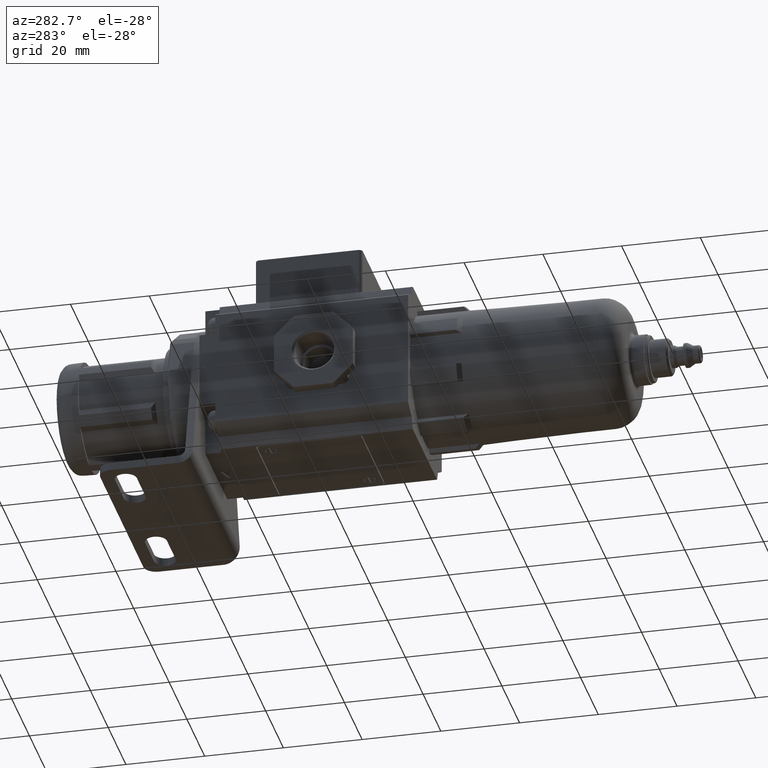
[diagram: clean part render]
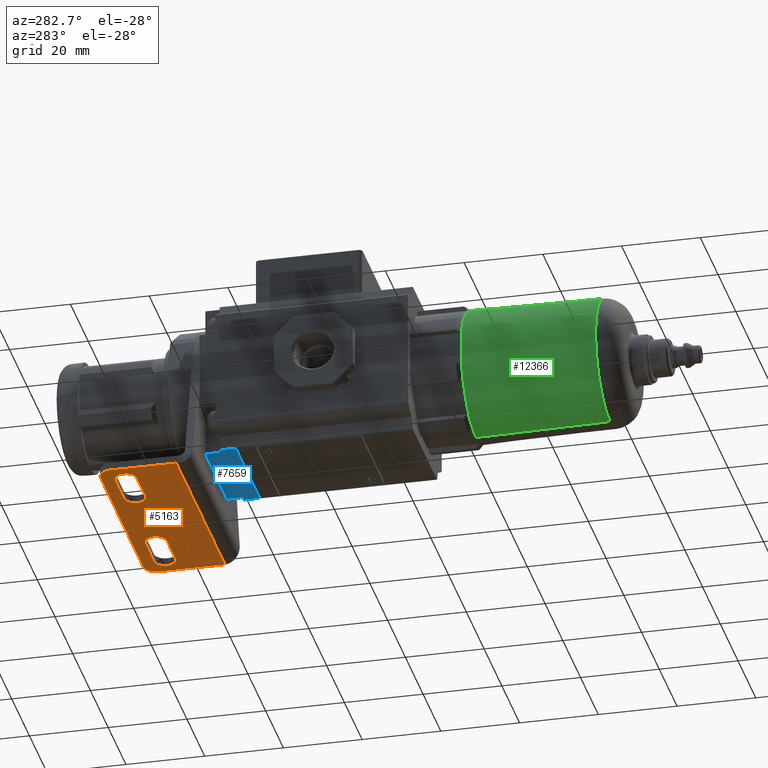
[diagram: same view with three faces highlighted in distinct colors, each labeled with its STEP entity id]
A machine part, auxiliary view with three faces highlighted in distinct colors.
Their STEP definitions:

[orange] entity #5163 — the highlighted planar face has unit normal (-0, 0, 1).
#433 = PLANE ( 'NONE',  #15992 ) ;
#452 = DIRECTION ( 'NONE',  ( 0.0000000000000000000, 0.0000000000000000000, 1.000000000000000000 ) ) ;
#574 = CARTESIAN_POINT ( 'NONE',  ( 11.99999999999998400, 45.24999999999998600, -30.00000000000007500 ) ) ;
#706 = EDGE_LOOP ( 'NONE', ( #9247, #10060, #3531, #8549, #8129 ) ) ;
#721 = VECTOR ( 'NONE', #5186, 1000.000000000000000 ) ;
#970 = CIRCLE ( 'NONE', #16263, 2.750000000000002700 ) ;
#1797 = VECTOR ( 'NONE', #5035, 1000.000000000000000 ) ;
#1857 = ORIENTED_EDGE ( 'NONE', *, *, #3655, .T. ) ;
#1897 = CIRCLE ( 'NONE', #6630, 2.750000000000009300 ) ;
#2145 = ORIENTED_EDGE ( 'NONE', *, *, #10357, .F. ) ;
#2213 = ORIENTED_EDGE ( 'NONE', *, *, #3425, .F. ) ;
#2283 = VECTOR ( 'NONE', #13334, 1000.000000000000000 ) ;
#2406 = CARTESIAN_POINT ( 'NONE',  ( 21.99999999999998600, 47.99999999999999300, -30.00000000000007500 ) ) ;
#2509 = ORIENTED_EDGE ( 'NONE', *, *, #11639, .T. ) ;
#2647 = CARTESIAN_POINT ( 'NONE',  ( 21.99999999999998600, 50.75000000000000000, -30.00000000000007500 ) ) ;
#2779 = CARTESIAN_POINT ( 'NONE',  ( -27.50000000000001800, 50.74999999999998600, -30.00000000000006400 ) ) ;
#2796 = VERTEX_POINT ( 'NONE', #2779 ) ;
#2924 = DIRECTION ( 'NONE',  ( -0.0000000000000000000, -0.0000000000000000000, -1.000000000000000000 ) ) ;
#2934 = VERTEX_POINT ( 'NONE', #14890 ) ;
#2977 = VERTEX_POINT ( 'NONE', #14947 ) ;
#3032 = ORIENTED_EDGE ( 'NONE', *, *, #14137, .F. ) ;
#3101 = DIRECTION ( 'NONE',  ( 0.0000000000000000000, -1.000000000000000000, 3.469446951953613400E-015 ) ) ;
#3201 = CARTESIAN_POINT ( 'NONE',  ( -2.725092878625384400E-014, 54.00000000000000000, -30.00000000000007500 ) ) ;
#3265 = EDGE_CURVE ( 'NONE', #7888, #11857, #13362, .T. ) ;
#3425 = EDGE_CURVE ( 'NONE', #2934, #13763, #13945, .T. ) ;
#3529 = CARTESIAN_POINT ( 'NONE',  ( -21.99999999999998600, 50.75000000000000000, -30.00000000000007500 ) ) ;
#3531 = ORIENTED_EDGE ( 'NONE', *, *, #3265, .T. ) ;
#3559 = CARTESIAN_POINT ( 'NONE',  ( 21.99999999999998600, 50.75000000000000000, -30.00000000000007500 ) ) ;
#3650 = AXIS2_PLACEMENT_3D ( 'NONE', #5551, #14429, #4478 ) ;
#3655 = EDGE_CURVE ( 'NONE', #2934, #2796, #10753, .T. ) ;
#3681 = DIRECTION ( 'NONE',  ( 1.000000000000000000, 0.0000000000000000000, 0.0000000000000000000 ) ) ;
#3716 = CARTESIAN_POINT ( 'NONE',  ( 24.24999999999998200, 50.75000000000000700, -30.00000000000006400 ) ) ;
#3753 = CARTESIAN_POINT ( 'NONE',  ( 24.24999999999998200, 54.00000000000001400, -30.00000000000007500 ) ) ;
#3954 = ORIENTED_EDGE ( 'NONE', *, *, #13638, .T. ) ;
#4089 = EDGE_CURVE ( 'NONE', #16099, #6679, #11134, .T. ) ;
#4195 = CARTESIAN_POINT ( 'NONE',  ( -21.99999999999998600, 45.24999999999999300, -30.00000000000007500 ) ) ;
#4330 = VECTOR ( 'NONE', #13099, 1000.000000000000000 ) ;
#4478 = DIRECTION ( 'NONE',  ( 1.000000000000000000, 0.0000000000000000000, 0.0000000000000000000 ) ) ;
#4546 = LINE ( 'NONE', #3201, #7532 ) ;
#4576 = DIRECTION ( 'NONE',  ( -0.0000000000000000000, -0.0000000000000000000, -1.000000000000000000 ) ) ;
#4974 = DIRECTION ( 'NONE',  ( 0.0000000000000000000, -1.000000000000000000, 3.202566417187948900E-015 ) ) ;
#5035 = DIRECTION ( 'NONE',  ( 1.000000000000000000, 6.938893903907228400E-016, -0.0000000000000000000 ) ) ;
#5163 = ADVANCED_FACE ( 'NONE', ( #12509, #5725, #12096 ), #433, .F. ) ;
#5186 = DIRECTION ( 'NONE',  ( -1.000000000000000000, 6.938893903907228400E-016, 0.0000000000000000000 ) ) ;
#5368 = CARTESIAN_POINT ( 'NONE',  ( -9.249999999999975100, 47.99999999999998600, -30.00000000000007500 ) ) ;
#5551 = CARTESIAN_POINT ( 'NONE',  ( 11.99999999999998400, 47.99999999999998600, -30.00000000000007500 ) ) ;
#5662 = DIRECTION ( 'NONE',  ( 1.750845403988396100E-030, -3.469446951953613400E-015, -1.000000000000000000 ) ) ;
#5725 = FACE_BOUND ( 'NONE', #706, .T. ) ;
#5888 = CARTESIAN_POINT ( 'NONE',  ( -27.50000000000000000, -1.197399886161783200E-013, -29.99999999999988600 ) ) ;
#6031 = CARTESIAN_POINT ( 'NONE',  ( 21.99999999999998600, 45.24999999999999300, -30.00000000000007500 ) ) ;
#6119 = VECTOR ( 'NONE', #7351, 1000.000000000000000 ) ;
#6292 = ORIENTED_EDGE ( 'NONE', *, *, #8302, .F. ) ;
#6613 = VERTEX_POINT ( 'NONE', #9314 ) ;
#6630 = AXIS2_PLACEMENT_3D ( 'NONE', #14939, #7317, #16226 ) ;
#6679 = VERTEX_POINT ( 'NONE', #574 ) ;
#6909 = CARTESIAN_POINT ( 'NONE',  ( 11.99999999999998400, 50.75000000000000000, -30.00000000000006400 ) ) ;
#7164 = VECTOR ( 'NONE', #14345, 1000.000000000000000 ) ;
#7253 = CIRCLE ( 'NONE', #7792, 3.250000000000002700 ) ;
#7293 = CARTESIAN_POINT ( 'NONE',  ( -24.25000000000002100, 53.99999999999998600, -30.00000000000007500 ) ) ;
#7317 = DIRECTION ( 'NONE',  ( -0.0000000000000000000, -0.0000000000000000000, -1.000000000000000000 ) ) ;
#7323 = EDGE_CURVE ( 'NONE', #6679, #10328, #11539, .T. ) ;
#7351 = DIRECTION ( 'NONE',  ( 1.000000000000000000, 6.938893903907228400E-016, 0.0000000000000000000 ) ) ;
#7457 = VERTEX_POINT ( 'NONE', #5368 ) ;
#7532 = VECTOR ( 'NONE', #9530, 1000.000000000000000 ) ;
#7619 = EDGE_CURVE ( 'NONE', #13187, #12094, #4546, .T. ) ;
#7662 = VERTEX_POINT ( 'NONE', #13422 ) ;
#7792 = AXIS2_PLACEMENT_3D ( 'NONE', #13294, #5662, #14558 ) ;
#7885 = AXIS2_PLACEMENT_3D ( 'NONE', #3716, #12612, #4974 ) ;
#7888 = VERTEX_POINT ( 'NONE', #11307 ) ;
#7986 = ORIENTED_EDGE ( 'NONE', *, *, #10847, .T. ) ;
#8054 = CARTESIAN_POINT ( 'NONE',  ( 21.99999999999998600, 47.99999999999999300, -30.00000000000007500 ) ) ;
#8108 = LINE ( 'NONE', #4195, #4330 ) ;
#8129 = ORIENTED_EDGE ( 'NONE', *, *, #4089, .T. ) ;
#8302 = EDGE_CURVE ( 'NONE', #2977, #8469, #8108, .T. ) ;
#8459 = ORIENTED_EDGE ( 'NONE', *, *, #15518, .F. ) ;
#8469 = VERTEX_POINT ( 'NONE', #14669 ) ;
#8503 = ORIENTED_EDGE ( 'NONE', *, *, #7619, .T. ) ;
#8541 = CARTESIAN_POINT ( 'NONE',  ( 27.49999999999998900, 33.99999999999995700, -30.00000000000000700 ) ) ;
#8549 = ORIENTED_EDGE ( 'NONE', *, *, #11393, .T. ) ;
#8618 = EDGE_LOOP ( 'NONE', ( #8503, #7986, #3954, #2213, #1857, #2509 ) ) ;
#8824 = CARTESIAN_POINT ( 'NONE',  ( 21.99999999999998600, 45.24999999999999300, -30.00000000000007500 ) ) ;
#9114 = LINE ( 'NONE', #3529, #6119 ) ;
#9247 = ORIENTED_EDGE ( 'NONE', *, *, #7323, .T. ) ;
#9314 = CARTESIAN_POINT ( 'NONE',  ( 27.49999999999998200, 50.75000000000000700, -30.00000000000006400 ) ) ;
#9328 = CARTESIAN_POINT ( 'NONE',  ( 5.516830960085580600E-029, -1.110663712362942900E-013, -29.99999999999988600 ) ) ;
#9345 = DIRECTION ( 'NONE',  ( 1.000000000000000000, 0.0000000000000000000, 0.0000000000000000000 ) ) ;
#9530 = DIRECTION ( 'NONE',  ( 1.000000000000000000, 5.046468293750712000E-016, 0.0000000000000000000 ) ) ;
#9545 = AXIS2_PLACEMENT_3D ( 'NONE', #10545, #2924, #11815 ) ;
#9748 = EDGE_LOOP ( 'NONE', ( #3032, #6292, #8459, #9783, #2145 ) ) ;
#9783 = ORIENTED_EDGE ( 'NONE', *, *, #11830, .F. ) ;
#9810 = EDGE_CURVE ( 'NONE', #10328, #7888, #970, .T. ) ;
#10060 = ORIENTED_EDGE ( 'NONE', *, *, #9810, .T. ) ;
#10328 = VERTEX_POINT ( 'NONE', #6031 ) ;
#10357 = EDGE_CURVE ( 'NONE', #15671, #7662, #9114, .T. ) ;
#10376 = VECTOR ( 'NONE', #14768, 1000.000000000000000 ) ;
#10545 = CARTESIAN_POINT ( 'NONE',  ( -11.99999999999998400, 47.99999999999998600, -30.00000000000007500 ) ) ;
#10707 = DIRECTION ( 'NONE',  ( -1.750845403988396100E-030, 3.469446951953613400E-015, 1.000000000000000000 ) ) ;
#10753 = LINE ( 'NONE', #5888, #10376 ) ;
#10798 = CARTESIAN_POINT ( 'NONE',  ( -21.99999999999998600, 50.75000000000000000, -30.00000000000007500 ) ) ;
#10847 = EDGE_CURVE ( 'NONE', #12094, #6613, #15450, .T. ) ;
#11134 = CIRCLE ( 'NONE', #3650, 2.750000000000009300 ) ;
#11282 = DIRECTION ( 'NONE',  ( 0.0000000000000000000, 0.0000000000000000000, 1.000000000000000000 ) ) ;
#11307 = CARTESIAN_POINT ( 'NONE',  ( 24.74999999999998600, 47.99999999999999300, -30.00000000000007500 ) ) ;
#11393 = EDGE_CURVE ( 'NONE', #11857, #16099, #14234, .T. ) ;
#11539 = LINE ( 'NONE', #8824, #1797 ) ;
#11568 = CIRCLE ( 'NONE', #9545, 2.750000000000009300 ) ;
#11634 = LINE ( 'NONE', #15874, #2283 ) ;
#11639 = EDGE_CURVE ( 'NONE', #2796, #13187, #7253, .T. ) ;
#11815 = DIRECTION ( 'NONE',  ( -1.000000000000000000, 0.0000000000000000000, 0.0000000000000000000 ) ) ;
#11830 = EDGE_CURVE ( 'NONE', #7662, #7457, #1897, .T. ) ;
#11857 = VERTEX_POINT ( 'NONE', #3559 ) ;
#12094 = VERTEX_POINT ( 'NONE', #3753 ) ;
#12096 = FACE_BOUND ( 'NONE', #9748, .T. ) ;
#12213 = CARTESIAN_POINT ( 'NONE',  ( -21.99999999999998600, 47.99999999999999300, -30.00000000000007500 ) ) ;
#12509 = FACE_OUTER_BOUND ( 'NONE', #8618, .T. ) ;
#12612 = DIRECTION ( 'NONE',  ( 1.750845403988396100E-030, -3.469446951953613400E-015, -1.000000000000000000 ) ) ;
#13099 = DIRECTION ( 'NONE',  ( -1.000000000000000000, 6.938893903907228400E-016, 0.0000000000000000000 ) ) ;
#13187 = VERTEX_POINT ( 'NONE', #7293 ) ;
#13294 = CARTESIAN_POINT ( 'NONE',  ( -24.25000000000002100, 50.74999999999998600, -30.00000000000006400 ) ) ;
#13334 = DIRECTION ( 'NONE',  ( 3.154042683594194100E-016, -1.000000000000000000, 3.469446951953613400E-015 ) ) ;
#13362 = CIRCLE ( 'NONE', #14718, 2.750000000000002700 ) ;
#13422 = CARTESIAN_POINT ( 'NONE',  ( -11.99999999999998400, 50.75000000000000000, -30.00000000000007500 ) ) ;
#13481 = DIRECTION ( 'NONE',  ( -1.000000000000000000, 0.0000000000000000000, 0.0000000000000000000 ) ) ;
#13638 = EDGE_CURVE ( 'NONE', #6613, #13763, #11634, .T. ) ;
#13763 = VERTEX_POINT ( 'NONE', #8541 ) ;
#13945 = LINE ( 'NONE', #15571, #7164 ) ;
#14137 = EDGE_CURVE ( 'NONE', #8469, #15671, #14965, .T. ) ;
#14234 = LINE ( 'NONE', #2647, #721 ) ;
#14345 = DIRECTION ( 'NONE',  ( 1.000000000000000000, 6.308085367188398100E-016, -4.377113509971017300E-031 ) ) ;
#14429 = DIRECTION ( 'NONE',  ( 0.0000000000000000000, 0.0000000000000000000, 1.000000000000000000 ) ) ;
#14558 = DIRECTION ( 'NONE',  ( 0.0000000000000000000, -1.000000000000000000, 3.202566417187948900E-015 ) ) ;
#14669 = CARTESIAN_POINT ( 'NONE',  ( -21.99999999999998600, 45.24999999999999300, -30.00000000000007500 ) ) ;
#14718 = AXIS2_PLACEMENT_3D ( 'NONE', #8054, #452, #9345 ) ;
#14768 = DIRECTION ( 'NONE',  ( -3.154042683594194100E-016, 1.000000000000000000, -3.469446951953613400E-015 ) ) ;
#14890 = CARTESIAN_POINT ( 'NONE',  ( -27.50000000000001100, 33.99999999999998600, -30.00000000000000700 ) ) ;
#14939 = CARTESIAN_POINT ( 'NONE',  ( -11.99999999999998400, 47.99999999999998600, -30.00000000000007500 ) ) ;
#14947 = CARTESIAN_POINT ( 'NONE',  ( -11.99999999999998400, 45.24999999999998600, -30.00000000000004300 ) ) ;
#14965 = CIRCLE ( 'NONE', #15699, 2.750000000000002700 ) ;
#15450 = CIRCLE ( 'NONE', #7885, 3.250000000000002700 ) ;
#15518 = EDGE_CURVE ( 'NONE', #7457, #2977, #11568, .T. ) ;
#15571 = CARTESIAN_POINT ( 'NONE',  ( 27.49999999999998600, 34.00000000000002100, -30.00000000000000700 ) ) ;
#15671 = VERTEX_POINT ( 'NONE', #10798 ) ;
#15699 = AXIS2_PLACEMENT_3D ( 'NONE', #12213, #4576, #13481 ) ;
#15874 = CARTESIAN_POINT ( 'NONE',  ( 27.50000000000000000, -1.023927538564102500E-013, -29.99999999999988600 ) ) ;
#15992 = AXIS2_PLACEMENT_3D ( 'NONE', #9328, #10707, #3101 ) ;
#16099 = VERTEX_POINT ( 'NONE', #6909 ) ;
#16226 = DIRECTION ( 'NONE',  ( -1.000000000000000000, 0.0000000000000000000, 0.0000000000000000000 ) ) ;
#16263 = AXIS2_PLACEMENT_3D ( 'NONE', #2406, #11282, #3681 ) ;

[blue] entity #7659 — the highlighted planar face has unit normal (0, -0, 1).
#2 = VECTOR ( 'NONE', #5852, 1000.000000000000000 ) ;
#55 = DIRECTION ( 'NONE',  ( 0.0000000000000000000, -0.0000000000000000000, 1.000000000000000000 ) ) ;
#149 = DIRECTION ( 'NONE',  ( -3.652049423109068300E-016, 1.000000000000000000, -0.0000000000000000000 ) ) ;
#640 = VECTOR ( 'NONE', #4512, 1000.000000000000000 ) ;
#679 = VECTOR ( 'NONE', #810, 1000.000000000000000 ) ;
#733 = CIRCLE ( 'NONE', #12151, 0.2000000000000000900 ) ;
#739 = EDGE_LOOP ( 'NONE', ( #13007, #13635, #3777, #9609, #12750, #10970, #3463, #14229 ) ) ;
#743 = PLANE ( 'NONE',  #14531 ) ;
#744 = VECTOR ( 'NONE', #13678, 1000.000000000000000 ) ;
#774 = VERTEX_POINT ( 'NONE', #14762 ) ;
#810 = DIRECTION ( 'NONE',  ( -1.000000000000000000, 0.0000000000000000000, 0.0000000000000000000 ) ) ;
#823 = CARTESIAN_POINT ( 'NONE',  ( 1.500624438629840200, 27.18726583551381300, -20.00000000000000000 ) ) ;
#869 = CARTESIAN_POINT ( 'NONE',  ( -1.729775311682324000, 28.39866574188087300, -20.00000000000000000 ) ) ;
#1316 = CARTESIAN_POINT ( 'NONE',  ( -1.800000000000001600, 25.78860009363293700, -20.00000000000000000 ) ) ;
#1367 = CARTESIAN_POINT ( 'NONE',  ( 13.53993773853710200, 25.99999999999999600, -20.00000000000000000 ) ) ;
#1559 = CARTESIAN_POINT ( 'NONE',  ( -2.000000000000001800, 25.50000000000000400, -20.00000000000000000 ) ) ;
#1794 = LINE ( 'NONE', #1990, #4746 ) ;
#1887 = CARTESIAN_POINT ( 'NONE',  ( -12.25000000000001200, 25.99999999999999600, -20.00000000000000000 ) ) ;
#1990 = CARTESIAN_POINT ( 'NONE',  ( 1.999999999999998200, 27.00000000000000400, -20.00000000000000000 ) ) ;
#1997 = CARTESIAN_POINT ( 'NONE',  ( -1.800000000000001600, 28.21139990636706300, -20.00000000000000000 ) ) ;
#2024 = DIRECTION ( 'NONE',  ( 1.000000000000000000, 0.0000000000000000000, -0.0000000000000000000 ) ) ;
#2313 = ORIENTED_EDGE ( 'NONE', *, *, #5659, .T. ) ;
#2611 = DIRECTION ( 'NONE',  ( 1.000000000000000000, 0.0000000000000000000, 0.0000000000000000000 ) ) ;
#2800 = VECTOR ( 'NONE', #8590, 1000.000000000000000 ) ;
#3026 = EDGE_CURVE ( 'NONE', #9040, #6233, #3036, .T. ) ;
#3036 = LINE ( 'NONE', #6176, #12792 ) ;
#3279 = DIRECTION ( 'NONE',  ( 1.000000000000000000, 0.0000000000000000000, 0.0000000000000000000 ) ) ;
#3381 = VECTOR ( 'NONE', #149, 1000.000000000000000 ) ;
#3463 = ORIENTED_EDGE ( 'NONE', *, *, #15542, .F. ) ;
#3485 = AXIS2_PLACEMENT_3D ( 'NONE', #13233, #5611, #14494 ) ;
#3777 = ORIENTED_EDGE ( 'NONE', *, *, #8586, .T. ) ;
#4032 = LINE ( 'NONE', #9597, #640 ) ;
#4147 = VERTEX_POINT ( 'NONE', #8491 ) ;
#4431 = LINE ( 'NONE', #7069, #11208 ) ;
#4512 = DIRECTION ( 'NONE',  ( 1.000000000000000000, 5.139921410301651800E-016, 0.0000000000000000000 ) ) ;
#4527 = DIRECTION ( 'NONE',  ( 0.9363291775690444400, 0.3511234415883919800, 0.0000000000000000000 ) ) ;
#4532 = EDGE_CURVE ( 'NONE', #4147, #774, #1794, .T. ) ;
#4627 = CARTESIAN_POINT ( 'NONE',  ( -12.25000000000001400, 29.99999999999999300, -20.00000000000000000 ) ) ;
#4746 = VECTOR ( 'NONE', #4527, 1000.000000000000100 ) ;
#5002 = VERTEX_POINT ( 'NONE', #15428 ) ;
#5026 = ORIENTED_EDGE ( 'NONE', *, *, #9660, .T. ) ;
#5056 = EDGE_CURVE ( 'NONE', #16351, #5259, #14084, .T. ) ;
#5146 = ORIENTED_EDGE ( 'NONE', *, *, #5056, .T. ) ;
#5192 = CARTESIAN_POINT ( 'NONE',  ( -12.25000000000001200, 25.99999999999999600, -20.00000000000000000 ) ) ;
#5259 = VERTEX_POINT ( 'NONE', #10866 ) ;
#5498 = VERTEX_POINT ( 'NONE', #14805 ) ;
#5611 = DIRECTION ( 'NONE',  ( 0.0000000000000000000, -0.0000000000000000000, 1.000000000000000000 ) ) ;
#5659 = EDGE_CURVE ( 'NONE', #5002, #9040, #15049, .T. ) ;
#5852 = DIRECTION ( 'NONE',  ( -1.000000000000000000, 5.139921410301651800E-016, 0.0000000000000000000 ) ) ;
#6037 = CARTESIAN_POINT ( 'NONE',  ( 18.99999999999999600, 30.00000000000000700, -20.00000000000000000 ) ) ;
#6176 = CARTESIAN_POINT ( 'NONE',  ( -2.000000000000001800, 28.50000000000000400, -20.00000000000000000 ) ) ;
#6233 = VERTEX_POINT ( 'NONE', #869 ) ;
#6274 = EDGE_CURVE ( 'NONE', #8540, #16199, #12949, .T. ) ;
#6349 = LINE ( 'NONE', #12206, #2 ) ;
#6690 = EDGE_LOOP ( 'NONE', ( #12866, #7900, #5146, #7727, #7835, #5026, #2313 ) ) ;
#6747 = FACE_BOUND ( 'NONE', #6690, .T. ) ;
#6760 = LINE ( 'NONE', #5192, #3381 ) ;
#6918 = VECTOR ( 'NONE', #10455, 1000.000000000000000 ) ;
#7013 = CARTESIAN_POINT ( 'NONE',  ( 0.0000000000000000000, 0.0000000000000000000, -20.00000000000000000 ) ) ;
#7069 = CARTESIAN_POINT ( 'NONE',  ( 13.53993773853709800, -1.301042606982605300E-015, -20.00000000000000000 ) ) ;
#7203 = VERTEX_POINT ( 'NONE', #1367 ) ;
#7206 = EDGE_CURVE ( 'NONE', #9696, #16199, #6760, .T. ) ;
#7644 = CARTESIAN_POINT ( 'NONE',  ( 1.430399750312160400, 27.00000000000000400, -20.00000000000000000 ) ) ;
#7659 = ADVANCED_FACE ( 'NONE', ( #10139, #6747 ), #743, .F. ) ;
#7684 = EDGE_CURVE ( 'NONE', #7203, #9235, #6349, .T. ) ;
#7694 = AXIS2_PLACEMENT_3D ( 'NONE', #7644, #55, #8941 ) ;
#7727 = ORIENTED_EDGE ( 'NONE', *, *, #10929, .T. ) ;
#7835 = ORIENTED_EDGE ( 'NONE', *, *, #4532, .T. ) ;
#7900 = ORIENTED_EDGE ( 'NONE', *, *, #9744, .T. ) ;
#8021 = CARTESIAN_POINT ( 'NONE',  ( 12.25000000000001200, 25.99999999999999600, -20.00000000000000000 ) ) ;
#8084 = CARTESIAN_POINT ( 'NONE',  ( -13.53993773853710200, 25.99999999999999600, -20.00000000000000000 ) ) ;
#8491 = CARTESIAN_POINT ( 'NONE',  ( -1.729775311682325100, 25.60133425811912700, -20.00000000000000000 ) ) ;
#8509 = CARTESIAN_POINT ( 'NONE',  ( 12.25000000000001400, 29.99999999999999300, -20.00000000000000000 ) ) ;
#8540 = VERTEX_POINT ( 'NONE', #8509 ) ;
#8566 = LINE ( 'NONE', #8021, #11157 ) ;
#8586 = EDGE_CURVE ( 'NONE', #5498, #16055, #14262, .T. ) ;
#8590 = DIRECTION ( 'NONE',  ( -1.000000000000000000, -3.652049423109067800E-016, 0.0000000000000000000 ) ) ;
#8620 = CARTESIAN_POINT ( 'NONE',  ( -13.53993773853710200, 29.99999999999999300, -20.00000000000000000 ) ) ;
#8941 = DIRECTION ( 'NONE',  ( 1.000000000000000000, 0.0000000000000000000, 0.0000000000000000000 ) ) ;
#9040 = VERTEX_POINT ( 'NONE', #823 ) ;
#9235 = VERTEX_POINT ( 'NONE', #15154 ) ;
#9597 = CARTESIAN_POINT ( 'NONE',  ( -19.00000000000001400, 25.99999999999998900, -20.00000000000000000 ) ) ;
#9609 = ORIENTED_EDGE ( 'NONE', *, *, #16158, .T. ) ;
#9643 = DIRECTION ( 'NONE',  ( 0.0000000000000000000, -0.0000000000000000000, 1.000000000000000000 ) ) ;
#9660 = EDGE_CURVE ( 'NONE', #774, #5002, #16085, .T. ) ;
#9696 = VERTEX_POINT ( 'NONE', #1887 ) ;
#9744 = EDGE_CURVE ( 'NONE', #6233, #16351, #11529, .T. ) ;
#10139 = FACE_OUTER_BOUND ( 'NONE', #739, .T. ) ;
#10217 = DIRECTION ( 'NONE',  ( 0.0000000000000000000, -0.0000000000000000000, 1.000000000000000000 ) ) ;
#10455 = DIRECTION ( 'NONE',  ( -0.0000000000000000000, -1.000000000000000000, 0.0000000000000000000 ) ) ;
#10866 = CARTESIAN_POINT ( 'NONE',  ( -2.000000000000001800, 25.78860009363293700, -20.00000000000000000 ) ) ;
#10888 = DIRECTION ( 'NONE',  ( 0.0000000000000000000, -0.0000000000000000000, 1.000000000000000000 ) ) ;
#10929 = EDGE_CURVE ( 'NONE', #5259, #4147, #733, .T. ) ;
#10970 = ORIENTED_EDGE ( 'NONE', *, *, #6274, .F. ) ;
#11157 = VECTOR ( 'NONE', #14354, 1000.000000000000000 ) ;
#11208 = VECTOR ( 'NONE', #15971, 1000.000000000000000 ) ;
#11529 = CIRCLE ( 'NONE', #12013, 0.2000000000000000900 ) ;
#12013 = AXIS2_PLACEMENT_3D ( 'NONE', #1997, #10888, #3279 ) ;
#12151 = AXIS2_PLACEMENT_3D ( 'NONE', #1316, #10217, #2611 ) ;
#12206 = CARTESIAN_POINT ( 'NONE',  ( 19.00000000000001400, 25.99999999999998900, -20.00000000000000000 ) ) ;
#12750 = ORIENTED_EDGE ( 'NONE', *, *, #7206, .T. ) ;
#12792 = VECTOR ( 'NONE', #16352, 1000.000000000000100 ) ;
#12866 = ORIENTED_EDGE ( 'NONE', *, *, #3026, .T. ) ;
#12949 = LINE ( 'NONE', #6037, #2800 ) ;
#13007 = ORIENTED_EDGE ( 'NONE', *, *, #14115, .T. ) ;
#13058 = CARTESIAN_POINT ( 'NONE',  ( 13.53993773853710000, 21.99999999999999300, -20.00000000000000000 ) ) ;
#13106 = EDGE_CURVE ( 'NONE', #16004, #5498, #14193, .T. ) ;
#13233 = CARTESIAN_POINT ( 'NONE',  ( 1.430399750312160400, 27.00000000000000400, -20.00000000000000000 ) ) ;
#13635 = ORIENTED_EDGE ( 'NONE', *, *, #13106, .T. ) ;
#13678 = DIRECTION ( 'NONE',  ( -9.130123557772672000E-017, 1.000000000000000000, 0.0000000000000000000 ) ) ;
#14084 = LINE ( 'NONE', #1559, #6918 ) ;
#14115 = EDGE_CURVE ( 'NONE', #7203, #16004, #4431, .T. ) ;
#14193 = LINE ( 'NONE', #16032, #679 ) ;
#14229 = ORIENTED_EDGE ( 'NONE', *, *, #7684, .F. ) ;
#14262 = LINE ( 'NONE', #8620, #744 ) ;
#14354 = DIRECTION ( 'NONE',  ( 3.652049423109068300E-016, 1.000000000000000000, -0.0000000000000000000 ) ) ;
#14494 = DIRECTION ( 'NONE',  ( 1.000000000000000000, 0.0000000000000000000, 0.0000000000000000000 ) ) ;
#14531 = AXIS2_PLACEMENT_3D ( 'NONE', #7013, #9643, #2024 ) ;
#14762 = CARTESIAN_POINT ( 'NONE',  ( 1.500624438629838900, 26.81273416448619400, -20.00000000000000000 ) ) ;
#14805 = CARTESIAN_POINT ( 'NONE',  ( -13.53993773853710200, 21.99999999999999300, -20.00000000000000000 ) ) ;
#15049 = CIRCLE ( 'NONE', #7694, 0.2000000000000000900 ) ;
#15132 = CARTESIAN_POINT ( 'NONE',  ( -2.000000000000001800, 28.21139990636706300, -20.00000000000000000 ) ) ;
#15154 = CARTESIAN_POINT ( 'NONE',  ( 12.25000000000001200, 25.99999999999999600, -20.00000000000000000 ) ) ;
#15428 = CARTESIAN_POINT ( 'NONE',  ( 1.630399750312160600, 27.00000000000000400, -20.00000000000000000 ) ) ;
#15542 = EDGE_CURVE ( 'NONE', #9235, #8540, #8566, .T. ) ;
#15971 = DIRECTION ( 'NONE',  ( -9.130123557772672000E-017, -1.000000000000000000, -0.0000000000000000000 ) ) ;
#16004 = VERTEX_POINT ( 'NONE', #13058 ) ;
#16032 = CARTESIAN_POINT ( 'NONE',  ( 0.0000000000000000000, 21.99999999999999300, -20.00000000000000000 ) ) ;
#16055 = VERTEX_POINT ( 'NONE', #8084 ) ;
#16085 = CIRCLE ( 'NONE', #3485, 0.2000000000000000900 ) ;
#16158 = EDGE_CURVE ( 'NONE', #16055, #9696, #4032, .T. ) ;
#16199 = VERTEX_POINT ( 'NONE', #4627 ) ;
#16351 = VERTEX_POINT ( 'NONE', #15132 ) ;
#16352 = DIRECTION ( 'NONE',  ( -0.9363291775690444400, 0.3511234415883919800, 0.0000000000000000000 ) ) ;

[green] entity #12366 — the highlighted conical surface has half-angle 0.841 deg.
#81 = DIRECTION ( 'NONE',  ( 0.0000000000000000000, 0.0000000000000000000, -1.000000000000000000 ) ) ;
#161 = CARTESIAN_POINT ( 'NONE',  ( -8.430678162710144400, -35.98308507952688700, -14.47392421847408500 ) ) ;
#187 = AXIS2_PLACEMENT_3D ( 'NONE', #10267, #2660, #11542 ) ;
#222 = CARTESIAN_POINT ( 'NONE',  ( 1.979029227422123100E-015, -76.20000000000001700, -16.16000000000000000 ) ) ;
#271 = CARTESIAN_POINT ( 'NONE',  ( -16.19623111833356800, -35.96617015905225400, 4.273316137884992600 ) ) ;
#583 = CARTESIAN_POINT ( 'NONE',  ( -16.19576820980580200, -36.00000000000000700, 4.273124394894654000 ) ) ;
#594 = CARTESIAN_POINT ( 'NONE',  ( 0.0000000000000000000, -70.04171897797783700, 0.0000000000000000000 ) ) ;
#597 = CIRCLE ( 'NONE', #8748, 16.75000000000000000 ) ;
#899 = ORIENTED_EDGE ( 'NONE', *, *, #16462, .T. ) ;
#922 = B_SPLINE_CURVE_WITH_KNOTS ( 'NONE', 3,
 ( #7633, #6364, #8929, #1310 ),
 .UNSPECIFIED., .F., .F.,
 ( 4, 4 ),
 ( 0.0000000000000000000, 5.075032683161740700E-005 ),
 .UNSPECIFIED. ) ;
#1195 = CARTESIAN_POINT ( 'NONE',  ( -4.273124394894708200, -36.00000000000000700, 16.19576820980578800 ) ) ;
#1306 = AXIS2_PLACEMENT_3D ( 'NONE', #14700, #7082, #15983 ) ;
#1310 = CARTESIAN_POINT ( 'NONE',  ( -8.430869905622275300, -35.94925523857610700, 14.47438712681274200 ) ) ;
#1354 = AXIS2_PLACEMENT_3D ( 'NONE', #4719, #13623, #6015 ) ;
#1390 = VERTEX_POINT ( 'NONE', #6445 ) ;
#1528 = AXIS2_PLACEMENT_3D ( 'NONE', #10070, #2462, #11342 ) ;
#1546 = CARTESIAN_POINT ( 'NONE',  ( -16.19599966411695000, -35.98308507952688700, 4.273220266409401400 ) ) ;
#1750 = DIRECTION ( 'NONE',  ( -0.0000000000000000000, -1.000000000000000000, -0.0000000000000000000 ) ) ;
#1877 = DIRECTION ( 'NONE',  ( 0.0000000000000000000, 0.0000000000000000000, -1.000000000000000000 ) ) ;
#1949 = AXIS2_PLACEMENT_3D ( 'NONE', #15278, #7671, #81 ) ;
#1981 = CARTESIAN_POINT ( 'NONE',  ( -14.47369276416291100, -36.00000000000000700, 8.430582291195447600 ) ) ;
#2036 = EDGE_CURVE ( 'NONE', #7156, #6981, #10857, .T. ) ;
#2216 = CARTESIAN_POINT ( 'NONE',  ( -14.47369276416291100, -36.00000000000000700, 8.430582291195447600 ) ) ;
#2236 = CIRCLE ( 'NONE', #1949, 16.75000000000000000 ) ;
#2263 = CARTESIAN_POINT ( 'NONE',  ( -14.47438712681271300, -35.94925523857610700, -8.430869905622325100 ) ) ;
#2442 = CARTESIAN_POINT ( 'NONE',  ( -14.47415567269061400, -35.96617015905225400, -8.430774034185887400 ) ) ;
#2460 = CARTESIAN_POINT ( 'NONE',  ( 2.051283388571816900E-015, -36.00000000000000700, -16.75000000000000000 ) ) ;
#2462 = DIRECTION ( 'NONE',  ( -0.0000000000000000000, -1.000000000000000000, -0.0000000000000000000 ) ) ;
#2479 = CARTESIAN_POINT ( 'NONE',  ( -14.47438712681276800, -35.94925523857610700, 8.430869905622223800 ) ) ;
#2599 = EDGE_CURVE ( 'NONE', #13188, #12380, #9654, .T. ) ;
#2660 = DIRECTION ( 'NONE',  ( -0.0000000000000000000, -1.000000000000000000, -0.0000000000000000000 ) ) ;
#2708 = ORIENTED_EDGE ( 'NONE', *, *, #3091, .T. ) ;
#2723 = CARTESIAN_POINT ( 'NONE',  ( -16.19623111833353900, -35.96617015905225400, -4.273316137885101900 ) ) ;
#2778 = EDGE_CURVE ( 'NONE', #6533, #7327, #3237, .T. ) ;
#2875 = CARTESIAN_POINT ( 'NONE',  ( -8.430869905622175900, -35.94925523857610700, -14.47438712681279900 ) ) ;
#3046 = VERTEX_POINT ( 'NONE', #2479 ) ;
#3091 = EDGE_CURVE ( 'NONE', #7754, #5252, #2236, .T. ) ;
#3237 = CIRCLE ( 'NONE', #13654, 16.75074476142388800 ) ;
#3409 = CIRCLE ( 'NONE', #187, 16.75000000000000000 ) ;
#3418 = VERTEX_POINT ( 'NONE', #5410 ) ;
#3756 = ORIENTED_EDGE ( 'NONE', *, *, #5806, .F. ) ;
#3758 = ORIENTED_EDGE ( 'NONE', *, *, #15574, .T. ) ;
#3829 = LINE ( 'NONE', #15240, #7588 ) ;
#3975 = CARTESIAN_POINT ( 'NONE',  ( 0.0000000000000000000, -35.94925523857611400, 0.0000000000000000000 ) ) ;
#4144 = EDGE_CURVE ( 'NONE', #14568, #15781, #597, .T. ) ;
#4178 = CARTESIAN_POINT ( 'NONE',  ( -4.273124394894597200, -36.00000000000000700, -16.19576820980581600 ) ) ;
#4198 = ORIENTED_EDGE ( 'NONE', *, *, #13743, .F. ) ;
#4385 = B_SPLINE_CURVE_WITH_KNOTS ( 'NONE', 3,
 ( #11611, #2723, #15427, #7824 ),
 .UNSPECIFIED., .F., .F.,
 ( 4, 4 ),
 ( 0.0000000000000000000, 5.075032683161738700E-005 ),
 .UNSPECIFIED. ) ;
#4528 = EDGE_CURVE ( 'NONE', #12145, #10769, #14889, .T. ) ;
#4587 = B_SPLINE_CURVE_WITH_KNOTS ( 'NONE', 3,
 ( #15126, #6242, #8803, #1195 ),
 .UNSPECIFIED., .F., .F.,
 ( 4, 4 ),
 ( 0.0000000000000000000, 5.075032683161738700E-005 ),
 .UNSPECIFIED. ) ;
#4610 = EDGE_CURVE ( 'NONE', #3046, #5252, #5222, .T. ) ;
#4703 = CARTESIAN_POINT ( 'NONE',  ( 0.0000000000000000000, -36.00000000000000700, 0.0000000000000000000 ) ) ;
#4719 = CARTESIAN_POINT ( 'NONE',  ( 0.0000000000000000000, -36.00000000000000700, 0.0000000000000000000 ) ) ;
#5023 = CARTESIAN_POINT ( 'NONE',  ( 2.020736257618110700E-015, -70.04171897797783700, -16.25038273141774100 ) ) ;
#5041 = ORIENTED_EDGE ( 'NONE', *, *, #14398, .F. ) ;
#5222 = B_SPLINE_CURVE_WITH_KNOTS ( 'NONE', 3,
 ( #11039, #8537, #9834, #2216 ),
 .UNSPECIFIED., .F., .F.,
 ( 4, 4 ),
 ( 0.0000000000000000000, 5.075032683161740000E-005 ),
 .UNSPECIFIED. ) ;
#5245 = DIRECTION ( 'NONE',  ( 0.0000000000000000000, 0.0000000000000000000, 1.000000000000000000 ) ) ;
#5252 = VERTEX_POINT ( 'NONE', #1981 ) ;
#5410 = CARTESIAN_POINT ( 'NONE',  ( -8.430582291195394300, -36.00000000000000700, -14.47369276416293700 ) ) ;
#5672 = CARTESIAN_POINT ( 'NONE',  ( 0.0000000000000000000, -35.94925523857611400, 0.0000000000000000000 ) ) ;
#5728 = EDGE_CURVE ( 'NONE', #6533, #3418, #8995, .T. ) ;
#5754 = CARTESIAN_POINT ( 'NONE',  ( -16.19646257245566900, -35.94925523857610700, 4.273412009321432100 ) ) ;
#5782 = ORIENTED_EDGE ( 'NONE', *, *, #2599, .T. ) ;
#5806 = EDGE_CURVE ( 'NONE', #15148, #10195, #6023, .T. ) ;
#5815 = B_SPLINE_CURVE_WITH_KNOTS ( 'NONE', 3,
 ( #8759, #16379, #2442, #11321 ),
 .UNSPECIFIED., .F., .F.,
 ( 4, 4 ),
 ( 0.0000000000000000000, 5.075032683161742100E-005 ),
 .UNSPECIFIED. ) ;
#5962 = CARTESIAN_POINT ( 'NONE',  ( -8.430582291195497300, -36.00000000000000700, 14.47369276416288000 ) ) ;
#5994 = DIRECTION ( 'NONE',  ( 0.0000000000000000000, 0.0000000000000000000, -1.000000000000000000 ) ) ;
#6015 = DIRECTION ( 'NONE',  ( 0.0000000000000000000, 0.0000000000000000000, -1.000000000000000000 ) ) ;
#6023 = B_SPLINE_CURVE_WITH_KNOTS ( 'NONE', 3,
 ( #9157, #1546, #271, #11717 ),
 .UNSPECIFIED., .F., .F.,
 ( 4, 4 ),
 ( 0.0000000000000000000, 5.075032683161738700E-005 ),
 .UNSPECIFIED. ) ;
#6027 = CARTESIAN_POINT ( 'NONE',  ( 0.0000000000000000000, -36.00000000000000700, 16.75000000000000000 ) ) ;
#6242 = CARTESIAN_POINT ( 'NONE',  ( -4.273316137885045100, -35.96617015905225400, 16.19623111833355400 ) ) ;
#6364 = CARTESIAN_POINT ( 'NONE',  ( -8.430678162710245600, -35.98308507952688700, 14.47392421847403000 ) ) ;
#6445 = CARTESIAN_POINT ( 'NONE',  ( -16.19576820980577700, -36.00000000000000700, -4.273124394894765000 ) ) ;
#6533 = VERTEX_POINT ( 'NONE', #2875 ) ;
#6608 = ORIENTED_EDGE ( 'NONE', *, *, #5728, .F. ) ;
#6797 = CIRCLE ( 'NONE', #10826, 16.75074476142388800 ) ;
#6889 = ORIENTED_EDGE ( 'NONE', *, *, #10432, .F. ) ;
#6952 = DIRECTION ( 'NONE',  ( 8.881784197001252300E-016, 0.0000000000000000000, 1.000000000000000000 ) ) ;
#6981 = VERTEX_POINT ( 'NONE', #14791 ) ;
#7038 = FACE_OUTER_BOUND ( 'NONE', #12876, .T. ) ;
#7082 = DIRECTION ( 'NONE',  ( -0.0000000000000000000, -1.000000000000000000, -0.0000000000000000000 ) ) ;
#7137 = VERTEX_POINT ( 'NONE', #16430 ) ;
#7140 = CARTESIAN_POINT ( 'NONE',  ( -4.273124394894708200, -36.00000000000000700, 16.19576820980578800 ) ) ;
#7156 = VERTEX_POINT ( 'NONE', #5023 ) ;
#7193 = CARTESIAN_POINT ( 'NONE',  ( -4.273412009321374300, -35.94925523857610700, -16.19646257245568000 ) ) ;
#7327 = VERTEX_POINT ( 'NONE', #13930 ) ;
#7381 = LINE ( 'NONE', #222, #14941 ) ;
#7588 = VECTOR ( 'NONE', #8926, 1000.000000000000000 ) ;
#7633 = CARTESIAN_POINT ( 'NONE',  ( -8.430582291195497300, -36.00000000000000700, 14.47369276416288000 ) ) ;
#7671 = DIRECTION ( 'NONE',  ( -0.0000000000000000000, -1.000000000000000000, -0.0000000000000000000 ) ) ;
#7754 = VERTEX_POINT ( 'NONE', #5962 ) ;
#7806 = ORIENTED_EDGE ( 'NONE', *, *, #15028, .F. ) ;
#7824 = CARTESIAN_POINT ( 'NONE',  ( -16.19576820980577700, -36.00000000000000700, -4.273124394894765000 ) ) ;
#8535 = EDGE_CURVE ( 'NONE', #14254, #13722, #10892, .T. ) ;
#8537 = CARTESIAN_POINT ( 'NONE',  ( -14.47415567269067300, -35.96617015905225400, 8.430774034185784400 ) ) ;
#8588 = CARTESIAN_POINT ( 'NONE',  ( -4.273412009321484500, -35.94925523857610700, 16.19646257245564800 ) ) ;
#8748 = AXIS2_PLACEMENT_3D ( 'NONE', #4703, #13609, #5994 ) ;
#8759 = CARTESIAN_POINT ( 'NONE',  ( -14.47369276416285000, -36.00000000000000700, -8.430582291195547000 ) ) ;
#8803 = CARTESIAN_POINT ( 'NONE',  ( -4.273220266409455600, -35.98308507952688700, 16.19599966411693600 ) ) ;
#8926 = DIRECTION ( 'NONE',  ( 0.0000000000000000000, 0.9998923158542695200, 0.01467503647646813600 ) ) ;
#8929 = CARTESIAN_POINT ( 'NONE',  ( -8.430774034185834200, -35.96617015905225400, 14.47415567269064400 ) ) ;
#8995 = B_SPLINE_CURVE_WITH_KNOTS ( 'NONE', 3,
 ( #15363, #14090, #161, #9043 ),
 .UNSPECIFIED., .F., .F.,
 ( 4, 4 ),
 ( 0.0000000000000000000, 5.075032683161746800E-005 ),
 .UNSPECIFIED. ) ;
#9043 = CARTESIAN_POINT ( 'NONE',  ( -8.430582291195394300, -36.00000000000000700, -14.47369276416293700 ) ) ;
#9100 = DIRECTION ( 'NONE',  ( 1.797173644827735700E-018, 0.9998923158542695200, -0.01467503647646813600 ) ) ;
#9157 = CARTESIAN_POINT ( 'NONE',  ( -16.19576820980580200, -36.00000000000000700, 4.273124394894654000 ) ) ;
#9365 = CARTESIAN_POINT ( 'NONE',  ( 0.0000000000000000000, -36.00000000000000700, 0.0000000000000000000 ) ) ;
#9487 = DIRECTION ( 'NONE',  ( -0.0000000000000000000, 1.000000000000000000, -0.0000000000000000000 ) ) ;
#9654 = CIRCLE ( 'NONE', #1528, 16.75074476142388800 ) ;
#9801 = B_SPLINE_CURVE_WITH_KNOTS ( 'NONE', 3,
 ( #12227, #10990, #14808, #7193 ),
 .UNSPECIFIED., .F., .F.,
 ( 4, 4 ),
 ( 0.0000000000000000000, 5.075032683161736600E-005 ),
 .UNSPECIFIED. ) ;
#9834 = CARTESIAN_POINT ( 'NONE',  ( -14.47392421847405900, -35.98308507952688700, 8.430678162710195900 ) ) ;
#10070 = CARTESIAN_POINT ( 'NONE',  ( 0.0000000000000000000, -35.94925523857611400, 0.0000000000000000000 ) ) ;
#10195 = VERTEX_POINT ( 'NONE', #5754 ) ;
#10228 = ORIENTED_EDGE ( 'NONE', *, *, #4144, .T. ) ;
#10267 = CARTESIAN_POINT ( 'NONE',  ( 0.0000000000000000000, -36.00000000000000700, 0.0000000000000000000 ) ) ;
#10432 = EDGE_CURVE ( 'NONE', #7137, #10769, #5815, .T. ) ;
#10640 = DIRECTION ( 'NONE',  ( 0.0000000000000000000, 0.0000000000000000000, -1.000000000000000000 ) ) ;
#10732 = DIRECTION ( 'NONE',  ( 0.0000000000000000000, 1.000000000000000000, 0.0000000000000000000 ) ) ;
#10769 = VERTEX_POINT ( 'NONE', #2263 ) ;
#10826 = AXIS2_PLACEMENT_3D ( 'NONE', #3975, #12875, #5245 ) ;
#10857 = CIRCLE ( 'NONE', #16080, 16.25038273141774100 ) ;
#10892 = CIRCLE ( 'NONE', #1354, 16.75000000000000000 ) ;
#10913 = ORIENTED_EDGE ( 'NONE', *, *, #11292, .F. ) ;
#10990 = CARTESIAN_POINT ( 'NONE',  ( -4.273220266409345500, -35.98308507952688700, -16.19599966411696500 ) ) ;
#11039 = CARTESIAN_POINT ( 'NONE',  ( -14.47438712681276800, -35.94925523857610700, 8.430869905622223800 ) ) ;
#11292 = EDGE_CURVE ( 'NONE', #13188, #13722, #4587, .T. ) ;
#11321 = CARTESIAN_POINT ( 'NONE',  ( -14.47438712681271300, -35.94925523857610700, -8.430869905622325100 ) ) ;
#11342 = DIRECTION ( 'NONE',  ( 0.0000000000000000000, 0.0000000000000000000, 1.000000000000000000 ) ) ;
#11542 = DIRECTION ( 'NONE',  ( 0.0000000000000000000, 0.0000000000000000000, -1.000000000000000000 ) ) ;
#11611 = CARTESIAN_POINT ( 'NONE',  ( -16.19646257245563300, -35.94925523857610700, -4.273412009321540400 ) ) ;
#11717 = CARTESIAN_POINT ( 'NONE',  ( -16.19646257245566900, -35.94925523857610700, 4.273412009321432100 ) ) ;
#11963 = AXIS2_PLACEMENT_3D ( 'NONE', #13240, #10732, #12015 ) ;
#12015 = DIRECTION ( 'NONE',  ( 0.0000000000000000000, 0.0000000000000000000, 1.000000000000000000 ) ) ;
#12032 = ORIENTED_EDGE ( 'NONE', *, *, #15398, .T. ) ;
#12093 = AXIS2_PLACEMENT_3D ( 'NONE', #9365, #1750, #10640 ) ;
#12145 = VERTEX_POINT ( 'NONE', #12818 ) ;
#12227 = CARTESIAN_POINT ( 'NONE',  ( -4.273124394894597200, -36.00000000000000700, -16.19576820980581600 ) ) ;
#12366 = ADVANCED_FACE ( 'NONE', ( #7038 ), #13418, .T. ) ;
#12380 = VERTEX_POINT ( 'NONE', #13290 ) ;
#12500 = ORIENTED_EDGE ( 'NONE', *, *, #2778, .T. ) ;
#12818 = CARTESIAN_POINT ( 'NONE',  ( -16.19646257245563300, -35.94925523857610700, -4.273412009321540400 ) ) ;
#12875 = DIRECTION ( 'NONE',  ( -0.0000000000000000000, -1.000000000000000000, -0.0000000000000000000 ) ) ;
#12876 = EDGE_LOOP ( 'NONE', ( #7806, #15213, #15069, #14949, #10913, #5782, #5041, #2708, #14934, #899, #3756, #12032, #15769, #16358, #6889, #3758, #6608, #12500, #4198, #10228 ) ) ;
#13188 = VERTEX_POINT ( 'NONE', #8588 ) ;
#13240 = CARTESIAN_POINT ( 'NONE',  ( 0.0000000000000000000, -76.20000000000001700, 0.0000000000000000000 ) ) ;
#13290 = CARTESIAN_POINT ( 'NONE',  ( -8.430869905622275300, -35.94925523857610700, 14.47438712681274200 ) ) ;
#13418 = CONICAL_SURFACE ( 'NONE', #11963, 16.16000000000000000, 0.01467556325541401400 ) ;
#13609 = DIRECTION ( 'NONE',  ( -0.0000000000000000000, -1.000000000000000000, -0.0000000000000000000 ) ) ;
#13623 = DIRECTION ( 'NONE',  ( -0.0000000000000000000, -1.000000000000000000, -0.0000000000000000000 ) ) ;
#13654 = AXIS2_PLACEMENT_3D ( 'NONE', #5672, #14563, #6952 ) ;
#13722 = VERTEX_POINT ( 'NONE', #7140 ) ;
#13743 = EDGE_CURVE ( 'NONE', #14568, #7327, #9801, .T. ) ;
#13930 = CARTESIAN_POINT ( 'NONE',  ( -4.273412009321374300, -35.94925523857610700, -16.19646257245568000 ) ) ;
#14090 = CARTESIAN_POINT ( 'NONE',  ( -8.430774034185736500, -35.96617015905225400, -14.47415567269070300 ) ) ;
#14133 = CIRCLE ( 'NONE', #12093, 16.75000000000000000 ) ;
#14254 = VERTEX_POINT ( 'NONE', #6027 ) ;
#14398 = EDGE_CURVE ( 'NONE', #7754, #12380, #922, .T. ) ;
#14563 = DIRECTION ( 'NONE',  ( -0.0000000000000000000, -1.000000000000000000, -0.0000000000000000000 ) ) ;
#14568 = VERTEX_POINT ( 'NONE', #4178 ) ;
#14700 = CARTESIAN_POINT ( 'NONE',  ( 0.0000000000000000000, -35.94925523857611400, 0.0000000000000000000 ) ) ;
#14791 = CARTESIAN_POINT ( 'NONE',  ( 0.0000000000000000000, -70.04171897797783700, 16.25038273141774100 ) ) ;
#14808 = CARTESIAN_POINT ( 'NONE',  ( -4.273316137884932300, -35.96617015905225400, -16.19623111833358200 ) ) ;
#14889 = CIRCLE ( 'NONE', #1306, 16.75074476142388800 ) ;
#14934 = ORIENTED_EDGE ( 'NONE', *, *, #4610, .F. ) ;
#14941 = VECTOR ( 'NONE', #9100, 1000.000000000000000 ) ;
#14949 = ORIENTED_EDGE ( 'NONE', *, *, #8535, .T. ) ;
#15028 = EDGE_CURVE ( 'NONE', #7156, #15781, #7381, .T. ) ;
#15069 = ORIENTED_EDGE ( 'NONE', *, *, #16406, .T. ) ;
#15126 = CARTESIAN_POINT ( 'NONE',  ( -4.273412009321484500, -35.94925523857610700, 16.19646257245564800 ) ) ;
#15148 = VERTEX_POINT ( 'NONE', #583 ) ;
#15213 = ORIENTED_EDGE ( 'NONE', *, *, #2036, .T. ) ;
#15240 = CARTESIAN_POINT ( 'NONE',  ( 0.0000000000000000000, -76.20000000000001700, 16.16000000000000000 ) ) ;
#15278 = CARTESIAN_POINT ( 'NONE',  ( 0.0000000000000000000, -36.00000000000000700, 0.0000000000000000000 ) ) ;
#15363 = CARTESIAN_POINT ( 'NONE',  ( -8.430869905622175900, -35.94925523857610700, -14.47438712681279900 ) ) ;
#15398 = EDGE_CURVE ( 'NONE', #15148, #1390, #3409, .T. ) ;
#15427 = CARTESIAN_POINT ( 'NONE',  ( -16.19599966411692500, -35.98308507952688700, -4.273220266409511600 ) ) ;
#15574 = EDGE_CURVE ( 'NONE', #7137, #3418, #14133, .T. ) ;
#15769 = ORIENTED_EDGE ( 'NONE', *, *, #15931, .F. ) ;
#15781 = VERTEX_POINT ( 'NONE', #2460 ) ;
#15931 = EDGE_CURVE ( 'NONE', #12145, #1390, #4385, .T. ) ;
#15983 = DIRECTION ( 'NONE',  ( -8.881784197001252300E-016, 0.0000000000000000000, 1.000000000000000000 ) ) ;
#16080 = AXIS2_PLACEMENT_3D ( 'NONE', #594, #9487, #1877 ) ;
#16358 = ORIENTED_EDGE ( 'NONE', *, *, #4528, .T. ) ;
#16379 = CARTESIAN_POINT ( 'NONE',  ( -14.47392421847400000, -35.98308507952688700, -8.430678162710295400 ) ) ;
#16406 = EDGE_CURVE ( 'NONE', #6981, #14254, #3829, .T. ) ;
#16430 = CARTESIAN_POINT ( 'NONE',  ( -14.47369276416285000, -36.00000000000000700, -8.430582291195547000 ) ) ;
#16462 = EDGE_CURVE ( 'NONE', #3046, #10195, #6797, .T. ) ;